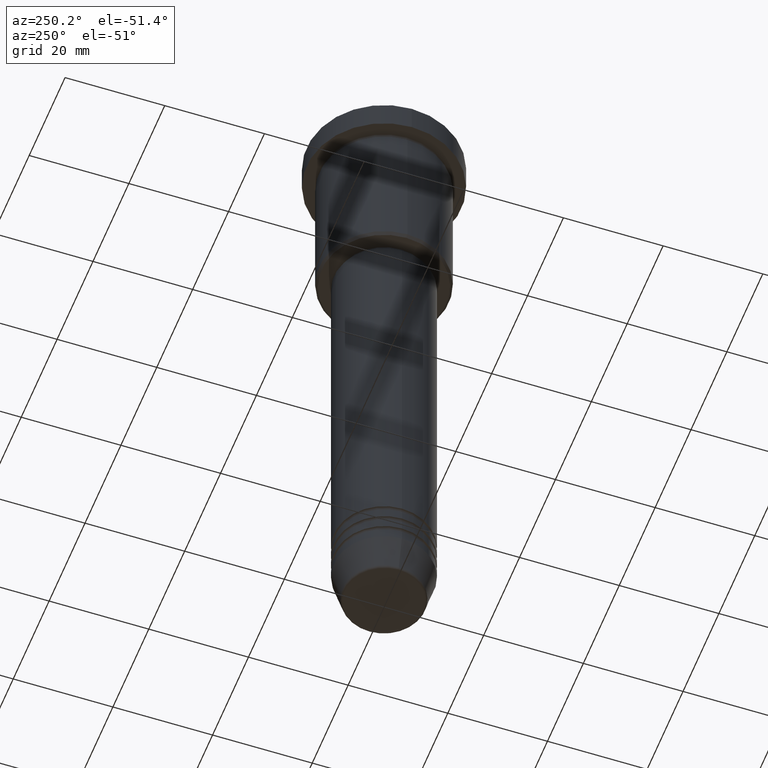
[diagram: clean part render]
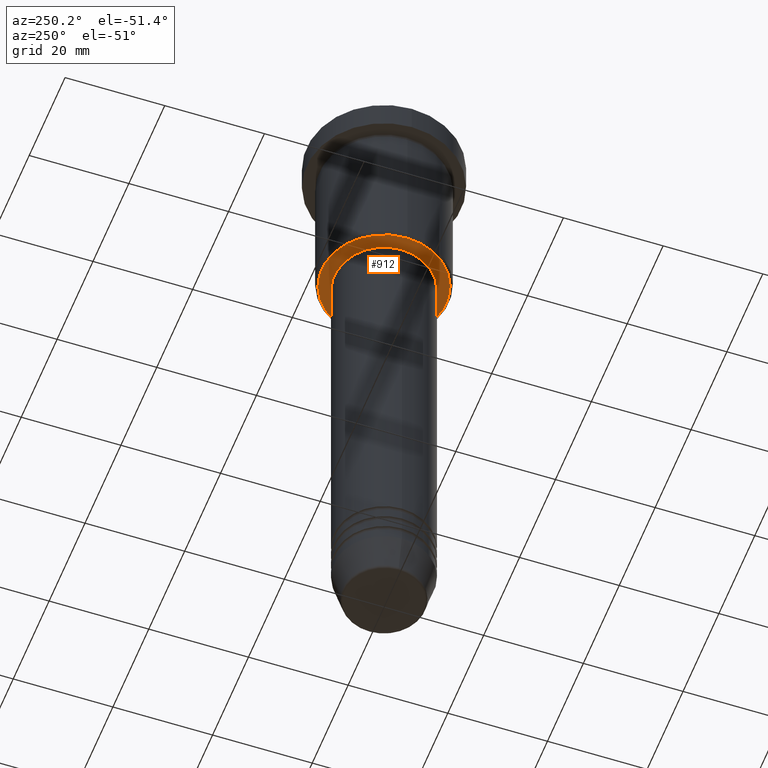
[diagram: same view with one face highlighted and labeled with its STEP entity id]
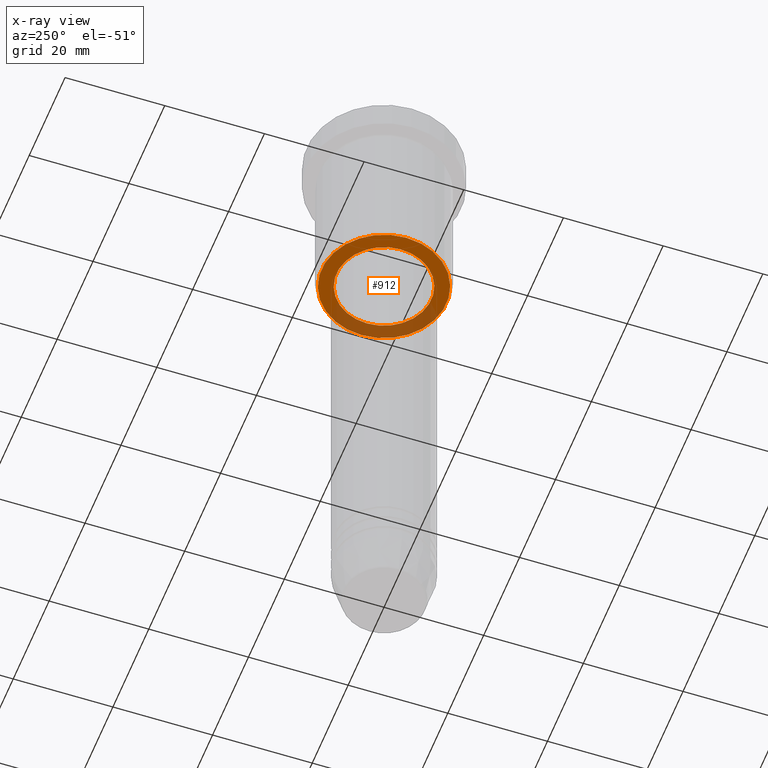
[diagram: x-ray of the same camera — body ghosted, the highlighted face saturated]
A machine part, auxiliary view. The second image highlights one B-rep face of the part: STEP entity #912.
The next image is the same camera in x-ray: the body ghosted, the highlighted face saturated — about 33% of this face is hidden behind the body in this view.
In plain terms, the highlighted planar face has unit normal (0, 0, -1).
Its self-contained STEP definition (entity closure, byte-faithful):
#4 = CARTESIAN_POINT ( 'NONE',  ( 0.000000000000000000, 0.000000000000000000, -35.99999999999999289 ) ) ;
#52 = AXIS2_PLACEMENT_3D ( 'NONE', #1099, #290, #392 ) ;
#106 = FACE_BOUND ( 'NONE', #713, .T. ) ;
#121 = FACE_OUTER_BOUND ( 'NONE', #644, .T. ) ;
#125 = CARTESIAN_POINT ( 'NONE',  ( -9.500000000000000000, 1.163414459189985485E-15, -35.99999999999999289 ) ) ;
#136 = CARTESIAN_POINT ( 'NONE',  ( 0.000000000000000000, 0.000000000000000000, -35.99999999999999289 ) ) ;
#141 = CARTESIAN_POINT ( 'NONE',  ( 0.000000000000000000, 0.000000000000000000, -35.99999999999999289 ) ) ;
#252 = CARTESIAN_POINT ( 'NONE',  ( 12.49999999999999645, 0.000000000000000000, -35.99999999999999289 ) ) ;
#290 = DIRECTION ( 'NONE',  ( 0.000000000000000000, 0.000000000000000000, -1.000000000000000000 ) ) ;
#384 = DIRECTION ( 'NONE',  ( 0.000000000000000000, 0.000000000000000000, -1.000000000000000000 ) ) ;
#392 = DIRECTION ( 'NONE',  ( -1.000000000000000000, 0.000000000000000000, -0.000000000000000000 ) ) ;
#444 = VERTEX_POINT ( 'NONE', #1107 ) ;
#446 = ORIENTED_EDGE ( 'NONE', *, *, #868, .T. ) ;
#492 = CARTESIAN_POINT ( 'NONE',  ( 0.000000000000000000, 0.000000000000000000, -35.99999999999999289 ) ) ;
#514 = DIRECTION ( 'NONE',  ( -0.000000000000000000, -0.000000000000000000, 1.000000000000000000 ) ) ;
#567 = CIRCLE ( 'NONE', #918, 12.49999999999999645 ) ;
#583 = PLANE ( 'NONE',  #52 ) ;
#620 = AXIS2_PLACEMENT_3D ( 'NONE', #4, #384, #740 ) ;
#621 = CIRCLE ( 'NONE', #997, 9.500000000000000000 ) ;
#644 = EDGE_LOOP ( 'NONE', ( #928, #446 ) ) ;
#654 = CIRCLE ( 'NONE', #620, 12.49999999999999645 ) ;
#707 = CIRCLE ( 'NONE', #995, 9.500000000000000000 ) ;
#713 = EDGE_LOOP ( 'NONE', ( #809, #848 ) ) ;
#717 = VERTEX_POINT ( 'NONE', #252 ) ;
#740 = DIRECTION ( 'NONE',  ( -1.000000000000000000, 0.000000000000000000, 0.000000000000000000 ) ) ;
#750 = DIRECTION ( 'NONE',  ( -0.000000000000000000, -0.000000000000000000, 1.000000000000000000 ) ) ;
#773 = DIRECTION ( 'NONE',  ( 1.000000000000000000, 0.000000000000000000, 0.000000000000000000 ) ) ;
#807 = EDGE_CURVE ( 'NONE', #1069, #977, #707, .T. ) ;
#809 = ORIENTED_EDGE ( 'NONE', *, *, #1108, .T. ) ;
#848 = ORIENTED_EDGE ( 'NONE', *, *, #807, .T. ) ;
#854 = DIRECTION ( 'NONE',  ( 0.000000000000000000, 0.000000000000000000, -1.000000000000000000 ) ) ;
#868 = EDGE_CURVE ( 'NONE', #444, #717, #567, .T. ) ;
#912 = ADVANCED_FACE ( 'NONE', ( #121, #106 ), #583, .T. ) ;
#918 = AXIS2_PLACEMENT_3D ( 'NONE', #136, #854, #964 ) ;
#928 = ORIENTED_EDGE ( 'NONE', *, *, #968, .T. ) ;
#964 = DIRECTION ( 'NONE',  ( -1.000000000000000000, 0.000000000000000000, 0.000000000000000000 ) ) ;
#968 = EDGE_CURVE ( 'NONE', #717, #444, #654, .T. ) ;
#977 = VERTEX_POINT ( 'NONE', #1118 ) ;
#995 = AXIS2_PLACEMENT_3D ( 'NONE', #492, #750, #1115 ) ;
#997 = AXIS2_PLACEMENT_3D ( 'NONE', #141, #514, #773 ) ;
#1069 = VERTEX_POINT ( 'NONE', #125 ) ;
#1099 = CARTESIAN_POINT ( 'NONE',  ( 0.000000000000000000, 13.00000000000000000, -35.99999999999999289 ) ) ;
#1107 = CARTESIAN_POINT ( 'NONE',  ( -12.49999999999999645, 1.561424668912875111E-15, -35.99999999999999289 ) ) ;
#1108 = EDGE_CURVE ( 'NONE', #977, #1069, #621, .T. ) ;
#1115 = DIRECTION ( 'NONE',  ( 1.000000000000000000, 0.000000000000000000, 0.000000000000000000 ) ) ;
#1118 = CARTESIAN_POINT ( 'NONE',  ( 9.500000000000000000, 0.000000000000000000, -35.99999999999999289 ) ) ;